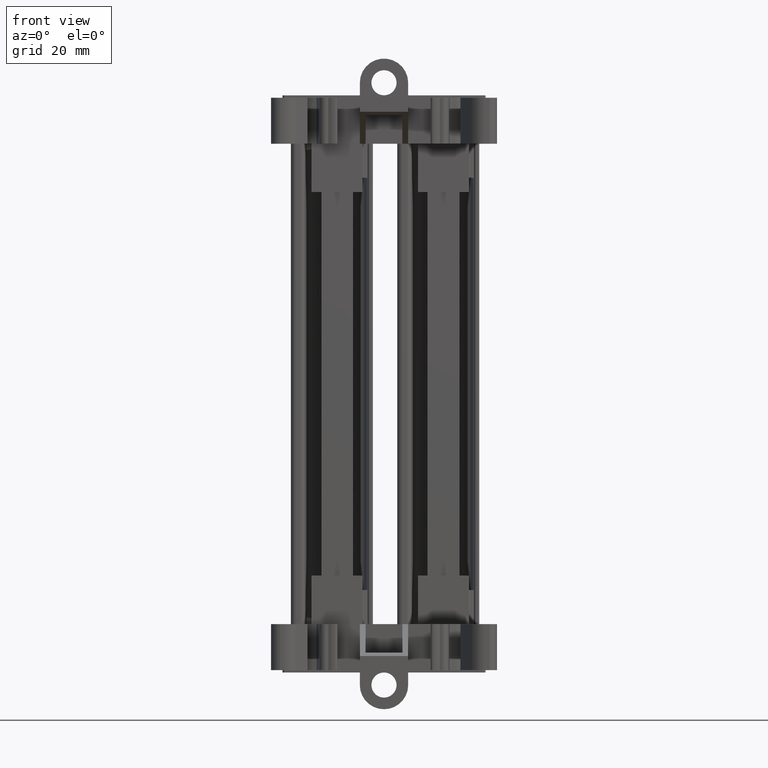
[diagram: clean part render]
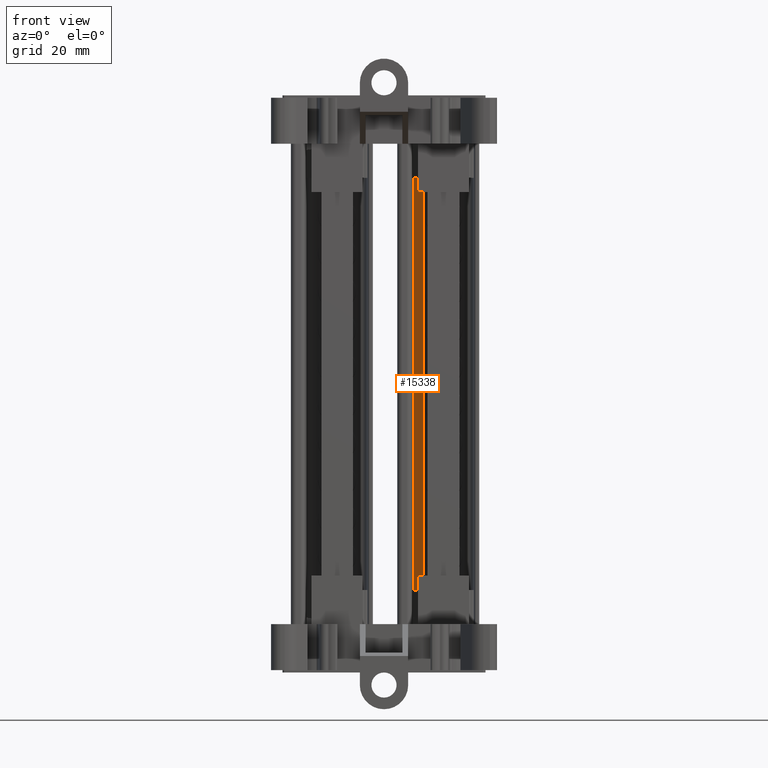
[diagram: same view with one face highlighted and labeled with its STEP entity id]
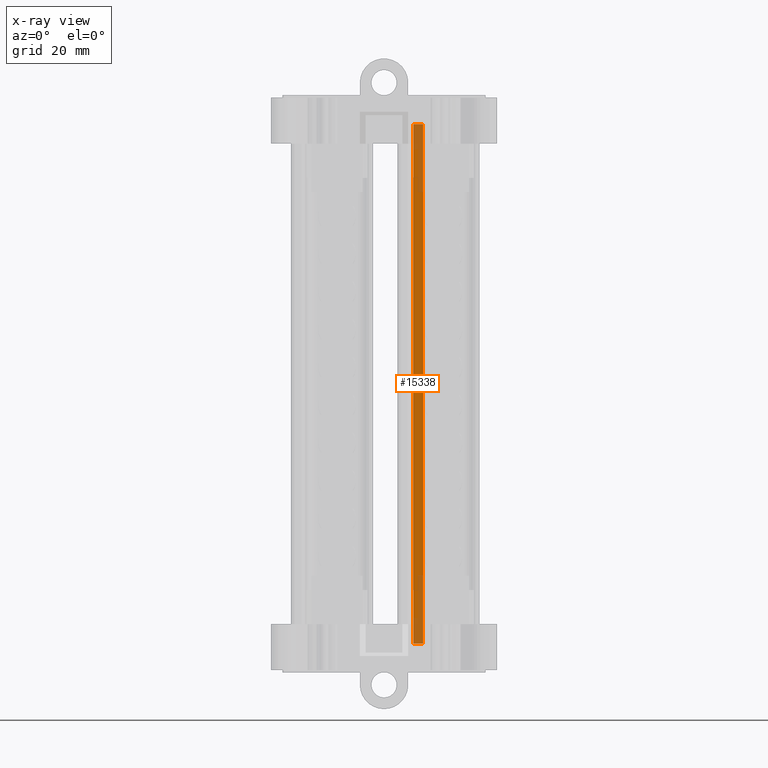
[diagram: x-ray of the same camera — body ghosted, the highlighted face saturated]
A machine part, front view. The second image highlights one B-rep face of the part: STEP entity #15338.
The next image is the same camera in x-ray: the body ghosted, the highlighted face saturated — about 18% of this face is hidden behind the body in this view.
In plain terms, the highlighted cylindrical surface (edge-blend (fillet) strip) has radius 1.9992 mm, axis along (-0, -0, -1).
Its self-contained STEP definition (entity closure, byte-faithful):
#9614 = EDGE_CURVE ( 'NONE', #21174, #21199, #34763, .T. ) ;
#9671 = EDGE_CURVE ( 'NONE', #21248, #21199, #23217, .T. ) ;
#9703 = EDGE_CURVE ( 'NONE', #21248, #21197, #34995, .T. ) ;
#9740 = EDGE_CURVE ( 'NONE', #21174, #21197, #23503, .T. ) ;
#15338 = ADVANCED_FACE ( 'NONE', ( #51165 ), #51185, .F. ) ;
#21174 = VERTEX_POINT ( 'NONE', #64464 ) ;
#21197 = VERTEX_POINT ( 'NONE', #64573 ) ;
#21199 = VERTEX_POINT ( 'NONE', #64534 ) ;
#21248 = VERTEX_POINT ( 'NONE', #64567 ) ;
#23021 = DIRECTION ( 'NONE',  ( 1.000000000000000000, 0.0000000000000000000, 0.0000000000000000000 ) ) ;
#23033 = CARTESIAN_POINT ( 'NONE',  ( -38.77832979237330600, 45.51670309895901300, 70.97218928989246900 ) ) ;
#23038 = DIRECTION ( 'NONE',  ( 1.387778780767670500E-017, 9.690813043904511800E-032, 1.000000000000000000 ) ) ;
#23197 = CARTESIAN_POINT ( 'NONE',  ( -40.77726772229390700, 45.55159469032032900, 69.93349374701713800 ) ) ;
#23207 = DIRECTION ( 'NONE',  ( 2.686070184306041300E-013, 1.604972357196100300E-014, 1.000000000000000000 ) ) ;
#23217 = LINE ( 'NONE', #23197, #34904 ) ;
#23338 = DIRECTION ( 'NONE',  ( -2.686070184306041300E-013, -1.604972357196100300E-014, -1.000000000000000000 ) ) ;
#23340 = DIRECTION ( 'NONE',  ( -1.000000000000000000, 0.0000000000000000000, 2.672486458504002200E-013 ) ) ;
#23372 = CARTESIAN_POINT ( 'NONE',  ( -38.77832979240206900, 45.51670309895730100, -36.09779384098941800 ) ) ;
#23498 = CARTESIAN_POINT ( 'NONE',  ( -38.77832979236674000, 47.51594552318420000, 69.93349374701657000 ) ) ;
#23503 = LINE ( 'NONE', #23498, #35047 ) ;
#23530 = DIRECTION ( 'NONE',  ( -2.686070184306041300E-013, -1.604972357196100300E-014, -1.000000000000000000 ) ) ;
#34763 = CIRCLE ( 'NONE', #34801, 1.999242424225201800 ) ;
#34801 = AXIS2_PLACEMENT_3D ( 'NONE', #23033, #23038, #23021 ) ;
#34904 = VECTOR ( 'NONE', #23207, 1000.000000000000000 ) ;
#34988 = AXIS2_PLACEMENT_3D ( 'NONE', #23372, #23338, #23340 ) ;
#34995 = CIRCLE ( 'NONE', #34988, 1.999242424225201800 ) ;
#35047 = VECTOR ( 'NONE', #23530, 1000.000000000000000 ) ;
#47550 = AXIS2_PLACEMENT_3D ( 'NONE', #51150, #51169, #51175 ) ;
#51150 = CARTESIAN_POINT ( 'NONE',  ( -38.77832979237358300, 45.51670309895899900, 69.93349374701659800 ) ) ;
#51165 = FACE_OUTER_BOUND ( 'NONE', #61282, .T. ) ;
#51169 = DIRECTION ( 'NONE',  ( -2.686070184306041300E-013, -1.604972357196100300E-014, -1.000000000000000000 ) ) ;
#51175 = DIRECTION ( 'NONE',  ( -1.000000000000000000, 0.0000000000000000000, 2.707194074848210100E-013 ) ) ;
#51185 = CYLINDRICAL_SURFACE ( 'NONE', #47550, 1.999242424225201800 ) ;
#61282 = EDGE_LOOP ( 'NONE', ( #72256, #72279, #72264, #71117 ) ) ;
#64464 = CARTESIAN_POINT ( 'NONE',  ( -38.77832979238538500, 47.51594552318420700, 70.97218928989246900 ) ) ;
#64534 = CARTESIAN_POINT ( 'NONE',  ( -40.77726772229365100, 45.55159469031912100, 70.97218928989246900 ) ) ;
#64567 = CARTESIAN_POINT ( 'NONE',  ( -40.77726772232228600, 45.55159469031841000, -36.09779384098931100 ) ) ;
#64573 = CARTESIAN_POINT ( 'NONE',  ( -38.77832979238538500, 47.51594552318250200, -36.09779384098944600 ) ) ;
#71117 = ORIENTED_EDGE ( 'NONE', *, *, #9703, .T. ) ;
#72256 = ORIENTED_EDGE ( 'NONE', *, *, #9740, .F. ) ;
#72264 = ORIENTED_EDGE ( 'NONE', *, *, #9671, .F. ) ;
#72279 = ORIENTED_EDGE ( 'NONE', *, *, #9614, .T. ) ;